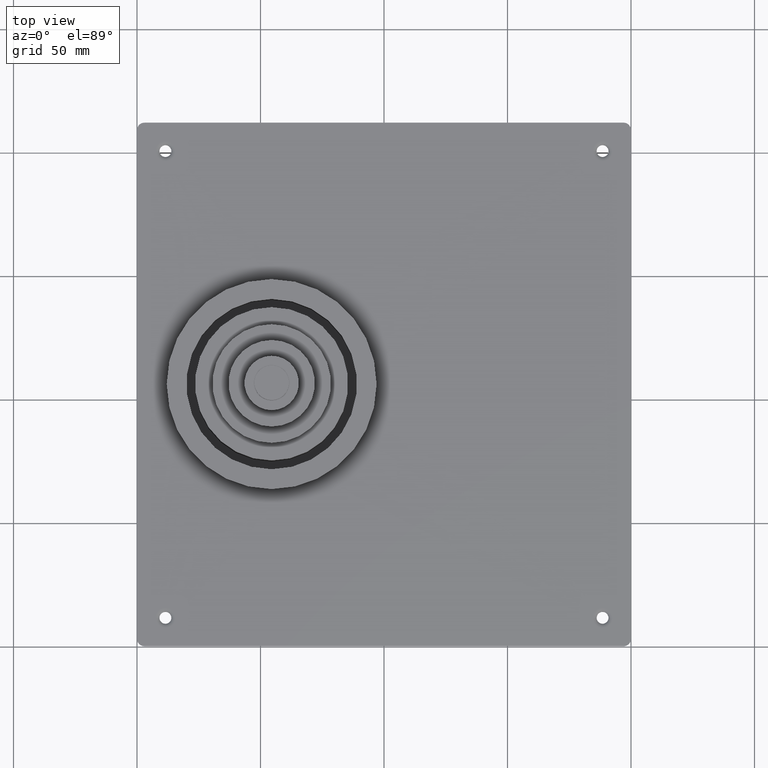
[diagram: clean part render]
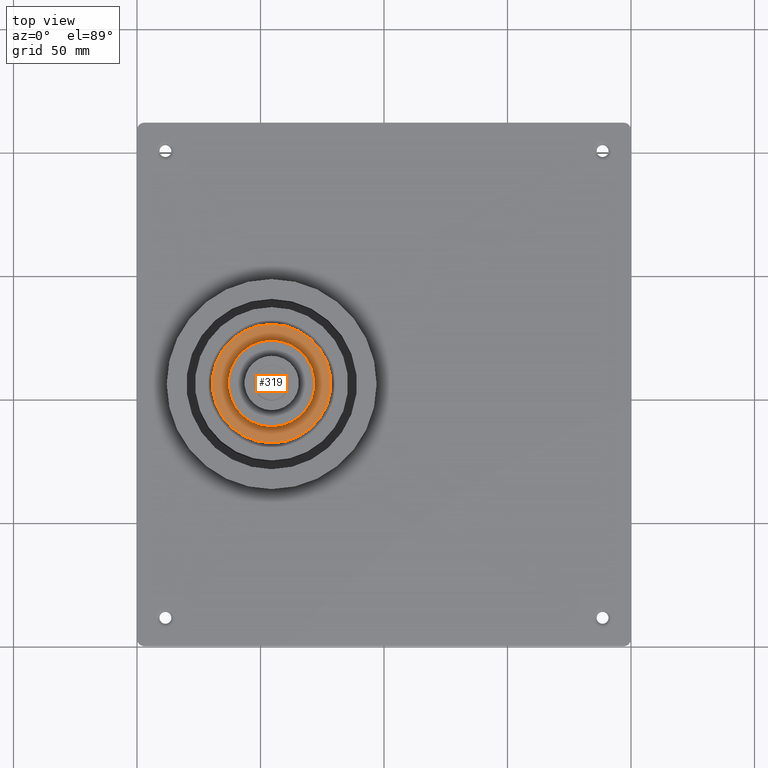
[diagram: same view with one face highlighted and labeled with its STEP entity id]
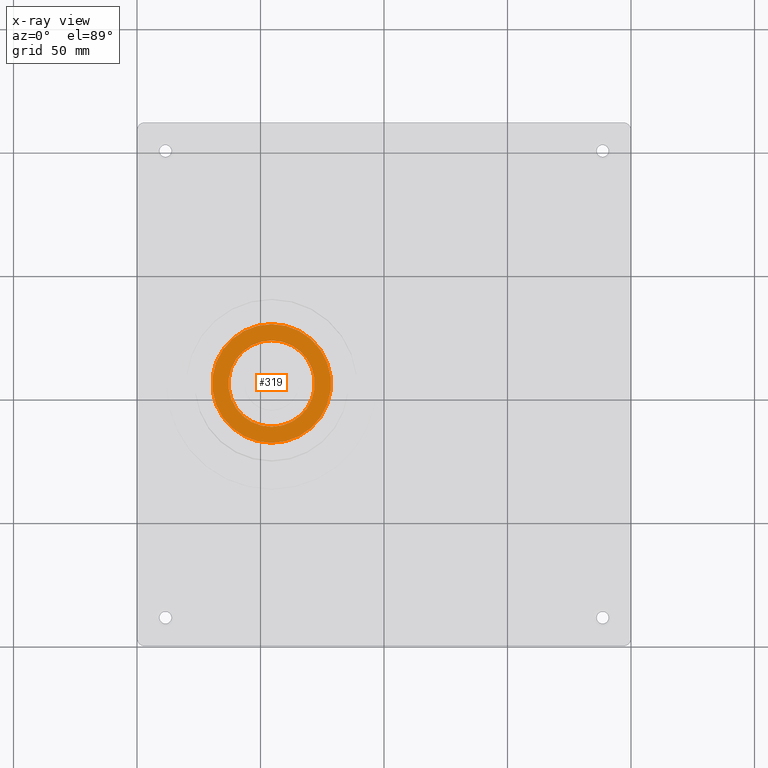
[diagram: x-ray of the same camera — body ghosted, the highlighted face saturated]
A machine part, top view. The second image highlights one B-rep face of the part: STEP entity #319.
The next image is the same camera in x-ray: the body ghosted, the highlighted face saturated — about 0% of this face is hidden behind the body in this view.
In plain terms, the highlighted planar face has unit normal (0, 0, 1).
Its self-contained STEP definition (entity closure, byte-faithful):
#319=ADVANCED_FACE('',(#626,#627),#628,.T.);
#626=FACE_OUTER_BOUND('',#912,.T.);
#627=FACE_BOUND('',#913,.T.);
#628=PLANE('',#914);
#912=EDGE_LOOP('',(#1607,#1608));
#913=EDGE_LOOP('',(#1609,#1610));
#914=AXIS2_PLACEMENT_3D('',#1611,#1612,#1613);
#1607=ORIENTED_EDGE('',*,*,#1772,.T.);
#1608=ORIENTED_EDGE('',*,*,#1889,.T.);
#1609=ORIENTED_EDGE('',*,*,#1765,.F.);
#1610=ORIENTED_EDGE('',*,*,#1891,.F.);
#1611=CARTESIAN_POINT('',(54.5,126.75,35.5));
#1612=DIRECTION('',(0.0,0.0,1.0));
#1613=DIRECTION('',(1.0,-0.0,0.0));
#1765=EDGE_CURVE('',#2098,#2101,#2102,.T.);
#1772=EDGE_CURVE('',#2108,#2112,#2114,.T.);
#1889=EDGE_CURVE('',#2112,#2108,#2281,.T.);
#1891=EDGE_CURVE('',#2101,#2098,#2283,.T.);
#2098=VERTEX_POINT('',#2524);
#2101=VERTEX_POINT('',#2528);
#2102=CIRCLE('',#2529,17.5);
#2108=VERTEX_POINT('',#2536);
#2112=VERTEX_POINT('',#2541);
#2114=CIRCLE('',#2544,24.0);
#2281=CIRCLE('',#2733,24.0);
#2283=CIRCLE('',#2735,17.5);
#2524=CARTESIAN_POINT('',(54.5,123.5,35.5));
#2528=CARTESIAN_POINT('',(54.5,88.5,35.5));
#2529=AXIS2_PLACEMENT_3D('',#2965,#2966,#2967);
#2536=CARTESIAN_POINT('',(54.5,130.0,35.5));
#2541=CARTESIAN_POINT('',(54.5,82.0,35.5));
#2544=AXIS2_PLACEMENT_3D('',#2977,#2978,#2979);
#2733=AXIS2_PLACEMENT_3D('',#3170,#3171,#3172);
#2735=AXIS2_PLACEMENT_3D('',#3173,#3174,#3175);
#2965=CARTESIAN_POINT('',(54.5,106.0,35.5));
#2966=DIRECTION('',(0.0,-0.0,1.0));
#2967=DIRECTION('',(0.0,1.0,0.0));
#2977=CARTESIAN_POINT('',(54.5,106.0,35.5));
#2978=DIRECTION('',(0.0,-0.0,1.0));
#2979=DIRECTION('',(0.0,1.0,0.0));
#3170=CARTESIAN_POINT('',(54.5,106.0,35.5));
#3171=DIRECTION('',(0.0,-0.0,1.0));
#3172=DIRECTION('',(0.0,1.0,0.0));
#3173=CARTESIAN_POINT('',(54.5,106.0,35.5));
#3174=DIRECTION('',(0.0,-0.0,1.0));
#3175=DIRECTION('',(0.0,1.0,0.0));